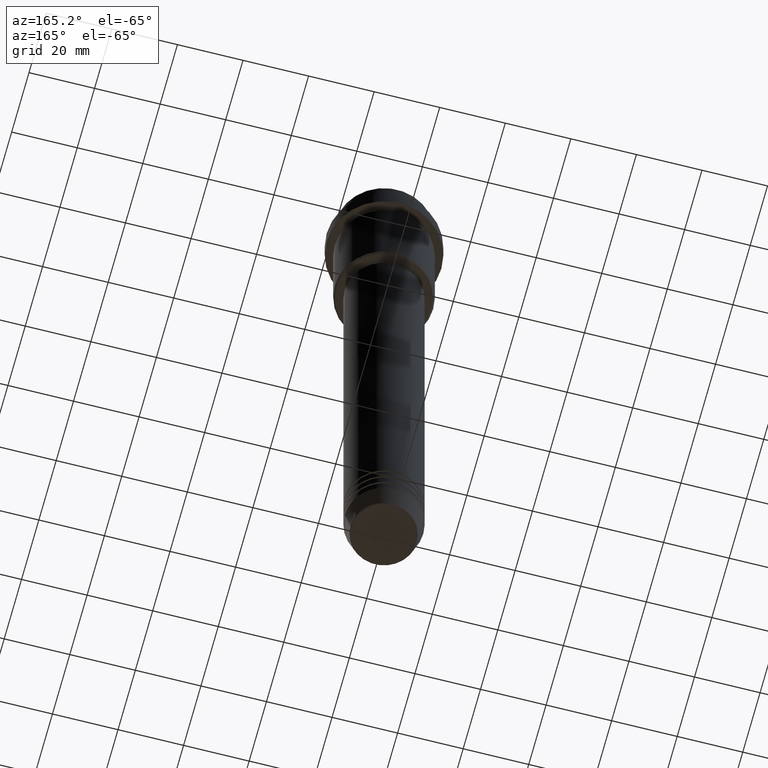
[diagram: clean part render]
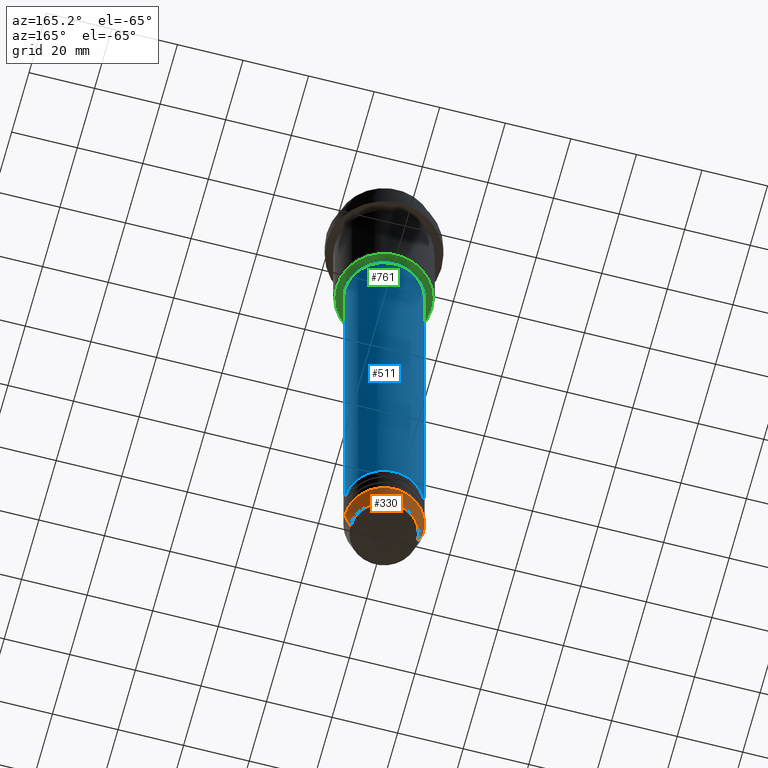
[diagram: same view with three faces highlighted in distinct colors, each labeled with its STEP entity id]
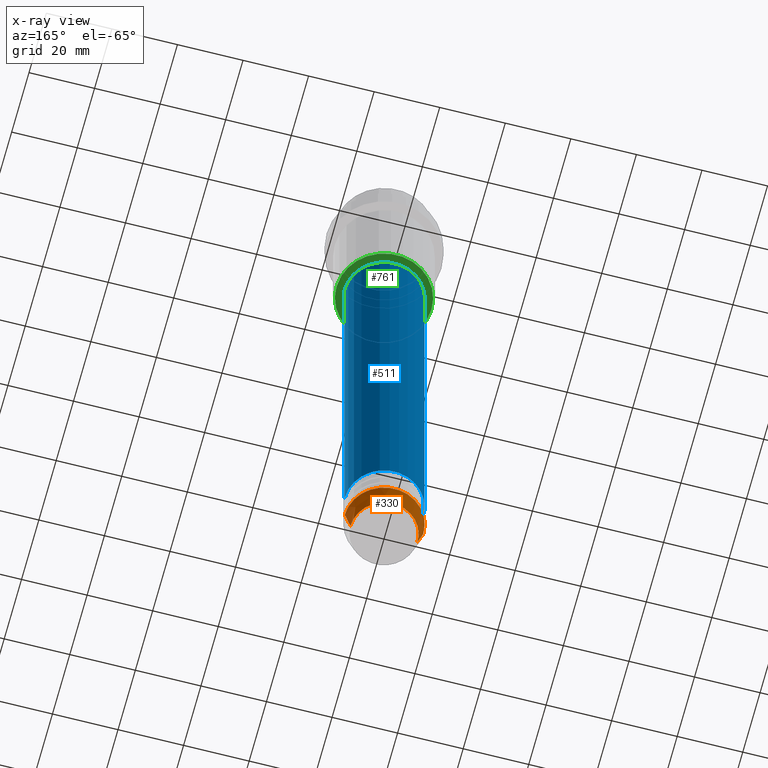
[diagram: x-ray of the same camera — body ghosted, the three highlighted faces saturated]
A machine part, auxiliary view with three faces highlighted in distinct colors.
The next image is the same camera in x-ray (body ghosted, the three faces saturated) — at least one of them is partly hidden behind the body in this view.
Their STEP definitions:

[orange] entity #330 — the highlighted conical surface has half-angle 15 deg.
#31 = EDGE_LOOP ( 'NONE', ( #1275, #1343, #374, #898 ) ) ;
#100 = CONICAL_SURFACE ( 'NONE', #954, 12.00000000000000000, 0.2617993877991500740 ) ;
#107 = CARTESIAN_POINT ( 'NONE',  ( 12.00000000000000000, 0.000000000000000000, -203.0000000000000000 ) ) ;
#207 = EDGE_CURVE ( 'NONE', #807, #1209, #461, .T. ) ;
#292 = CARTESIAN_POINT ( 'NONE',  ( 0.000000000000000000, 0.000000000000000000, -209.6294095225512706 ) ) ;
#330 = ADVANCED_FACE ( 'NONE', ( #1237 ), #100, .T. ) ;
#374 = ORIENTED_EDGE ( 'NONE', *, *, #207, .F. ) ;
#383 = CARTESIAN_POINT ( 'NONE',  ( -12.00000000000000000, 1.469576158976823947E-15, -203.0000000000000000 ) ) ;
#389 = CARTESIAN_POINT ( 'NONE',  ( 0.000000000000000000, 0.000000000000000000, -203.0000000000000000 ) ) ;
#461 = CIRCLE ( 'NONE', #1124, 12.00000000000000000 ) ;
#543 = DIRECTION ( 'NONE',  ( 0.2588190451025213501, 0.000000000000000000, 0.9659258262890680902 ) ) ;
#548 = DIRECTION ( 'NONE',  ( -0.000000000000000000, -0.000000000000000000, 1.000000000000000000 ) ) ;
#562 = EDGE_CURVE ( 'NONE', #1393, #1209, #1391, .T. ) ;
#581 = EDGE_CURVE ( 'NONE', #659, #807, #1327, .T. ) ;
#587 = DIRECTION ( 'NONE',  ( -0.2588190451025213501, 3.169619151431772337E-17, 0.9659258262890680902 ) ) ;
#659 = VERTEX_POINT ( 'NONE', #684 ) ;
#684 = CARTESIAN_POINT ( 'NONE',  ( 10.22365507213719127, 0.000000000000000000, -209.6294095225512706 ) ) ;
#734 = DIRECTION ( 'NONE',  ( 1.000000000000000000, 0.000000000000000000, 0.000000000000000000 ) ) ;
#807 = VERTEX_POINT ( 'NONE', #1232 ) ;
#816 = CIRCLE ( 'NONE', #1362, 10.22365507213719127 ) ;
#898 = ORIENTED_EDGE ( 'NONE', *, *, #581, .F. ) ;
#906 = VECTOR ( 'NONE', #587, 1000.000000000000000 ) ;
#930 = VECTOR ( 'NONE', #543, 1000.000000000000000 ) ;
#953 = CARTESIAN_POINT ( 'NONE',  ( -10.22365507213719127, 1.360806402472382744E-15, -209.6294095225512706 ) ) ;
#954 = AXIS2_PLACEMENT_3D ( 'NONE', #389, #1262, #1024 ) ;
#1024 = DIRECTION ( 'NONE',  ( 1.000000000000000000, 0.000000000000000000, 0.000000000000000000 ) ) ;
#1124 = AXIS2_PLACEMENT_3D ( 'NONE', #1413, #548, #1290 ) ;
#1209 = VERTEX_POINT ( 'NONE', #383 ) ;
#1232 = CARTESIAN_POINT ( 'NONE',  ( 12.00000000000000000, 0.000000000000000000, -203.0000000000000000 ) ) ;
#1237 = FACE_OUTER_BOUND ( 'NONE', #31, .T. ) ;
#1262 = DIRECTION ( 'NONE',  ( -0.000000000000000000, -0.000000000000000000, 1.000000000000000000 ) ) ;
#1273 = CARTESIAN_POINT ( 'NONE',  ( -12.00000000000000000, 1.469576158976823947E-15, -203.0000000000000000 ) ) ;
#1275 = ORIENTED_EDGE ( 'NONE', *, *, #1398, .T. ) ;
#1290 = DIRECTION ( 'NONE',  ( 1.000000000000000000, 0.000000000000000000, 0.000000000000000000 ) ) ;
#1327 = LINE ( 'NONE', #107, #930 ) ;
#1343 = ORIENTED_EDGE ( 'NONE', *, *, #562, .T. ) ;
#1362 = AXIS2_PLACEMENT_3D ( 'NONE', #292, #1386, #734 ) ;
#1386 = DIRECTION ( 'NONE',  ( -0.000000000000000000, -0.000000000000000000, 1.000000000000000000 ) ) ;
#1391 = LINE ( 'NONE', #1273, #906 ) ;
#1393 = VERTEX_POINT ( 'NONE', #953 ) ;
#1398 = EDGE_CURVE ( 'NONE', #659, #1393, #816, .T. ) ;
#1413 = CARTESIAN_POINT ( 'NONE',  ( 0.000000000000000000, 0.000000000000000000, -203.0000000000000000 ) ) ;

[blue] entity #511 — the highlighted cylindrical surface (partial cylindrical patch) has radius 12 mm, axis along (-0, -0, 1).
#2 = VERTEX_POINT ( 'NONE', #824 ) ;
#30 = VECTOR ( 'NONE', #204, 1000.000000000000000 ) ;
#32 = CIRCLE ( 'NONE', #1067, 12.00000000000000000 ) ;
#119 = AXIS2_PLACEMENT_3D ( 'NONE', #917, #1157, #683 ) ;
#183 = ORIENTED_EDGE ( 'NONE', *, *, #730, .F. ) ;
#204 = DIRECTION ( 'NONE',  ( -0.000000000000000000, -0.000000000000000000, 1.000000000000000000 ) ) ;
#338 = CARTESIAN_POINT ( 'NONE',  ( 12.00000000000000000, 0.000000000000000000, 0.000000000000000000 ) ) ;
#511 = ADVANCED_FACE ( 'NONE', ( #1375 ), #1234, .T. ) ;
#525 = VERTEX_POINT ( 'NONE', #584 ) ;
#584 = CARTESIAN_POINT ( 'NONE',  ( -11.99999999999999822, 1.469576158976823750E-15, -46.00000000000001421 ) ) ;
#588 = CARTESIAN_POINT ( 'NONE',  ( 0.000000000000000000, 0.000000000000000000, -190.9999999999998863 ) ) ;
#616 = CARTESIAN_POINT ( 'NONE',  ( -12.00000000000000000, 1.469576158976823947E-15, 0.000000000000000000 ) ) ;
#620 = LINE ( 'NONE', #616, #695 ) ;
#635 = CARTESIAN_POINT ( 'NONE',  ( 12.00000000000000000, 0.000000000000000000, -190.9999999999998863 ) ) ;
#683 = DIRECTION ( 'NONE',  ( 1.000000000000000000, 0.000000000000000000, 0.000000000000000000 ) ) ;
#695 = VECTOR ( 'NONE', #1165, 1000.000000000000000 ) ;
#729 = CARTESIAN_POINT ( 'NONE',  ( 0.000000000000000000, 0.000000000000000000, -46.00000000000001421 ) ) ;
#730 = EDGE_CURVE ( 'NONE', #731, #801, #1368, .T. ) ;
#731 = VERTEX_POINT ( 'NONE', #635 ) ;
#757 = ORIENTED_EDGE ( 'NONE', *, *, #1201, .T. ) ;
#801 = VERTEX_POINT ( 'NONE', #1155 ) ;
#824 = CARTESIAN_POINT ( 'NONE',  ( -12.00000000000000000, 1.469576158976823947E-15, -190.9999999999998863 ) ) ;
#917 = CARTESIAN_POINT ( 'NONE',  ( 0.000000000000000000, 0.000000000000000000, 0.000000000000000000 ) ) ;
#952 = EDGE_LOOP ( 'NONE', ( #757, #1283, #1061, #183 ) ) ;
#990 = EDGE_CURVE ( 'NONE', #801, #525, #1339, .T. ) ;
#1058 = DIRECTION ( 'NONE',  ( 1.000000000000000000, 0.000000000000000000, 0.000000000000000000 ) ) ;
#1061 = ORIENTED_EDGE ( 'NONE', *, *, #990, .F. ) ;
#1067 = AXIS2_PLACEMENT_3D ( 'NONE', #588, #1370, #1120 ) ;
#1120 = DIRECTION ( 'NONE',  ( 1.000000000000000000, 0.000000000000000000, 0.000000000000000000 ) ) ;
#1155 = CARTESIAN_POINT ( 'NONE',  ( 11.99999999999999822, 0.000000000000000000, -46.00000000000001421 ) ) ;
#1157 = DIRECTION ( 'NONE',  ( -0.000000000000000000, -0.000000000000000000, 1.000000000000000000 ) ) ;
#1165 = DIRECTION ( 'NONE',  ( -0.000000000000000000, -0.000000000000000000, 1.000000000000000000 ) ) ;
#1201 = EDGE_CURVE ( 'NONE', #731, #2, #32, .T. ) ;
#1234 = CYLINDRICAL_SURFACE ( 'NONE', #119, 12.00000000000000000 ) ;
#1240 = AXIS2_PLACEMENT_3D ( 'NONE', #729, #1279, #1058 ) ;
#1279 = DIRECTION ( 'NONE',  ( -0.000000000000000000, -0.000000000000000000, 1.000000000000000000 ) ) ;
#1283 = ORIENTED_EDGE ( 'NONE', *, *, #1414, .T. ) ;
#1339 = CIRCLE ( 'NONE', #1240, 11.99999999999999822 ) ;
#1368 = LINE ( 'NONE', #338, #30 ) ;
#1370 = DIRECTION ( 'NONE',  ( -0.000000000000000000, -0.000000000000000000, 1.000000000000000000 ) ) ;
#1375 = FACE_OUTER_BOUND ( 'NONE', #952, .T. ) ;
#1414 = EDGE_CURVE ( 'NONE', #2, #525, #620, .T. ) ;

[green] entity #761 — the highlighted planar face has unit normal (0, 0, -1).
#36 = CARTESIAN_POINT ( 'NONE',  ( 0.000000000000000000, 15.00000000000000000, -45.00000000000001421 ) ) ;
#50 = FACE_OUTER_BOUND ( 'NONE', #238, .T. ) ;
#72 = VERTEX_POINT ( 'NONE', #1233 ) ;
#128 = DIRECTION ( 'NONE',  ( 0.000000000000000000, 0.000000000000000000, -1.000000000000000000 ) ) ;
#133 = DIRECTION ( 'NONE',  ( -1.000000000000000000, 0.000000000000000000, 0.000000000000000000 ) ) ;
#150 = AXIS2_PLACEMENT_3D ( 'NONE', #793, #503, #313 ) ;
#166 = FACE_BOUND ( 'NONE', #291, .T. ) ;
#174 = AXIS2_PLACEMENT_3D ( 'NONE', #36, #681, #1179 ) ;
#193 = CARTESIAN_POINT ( 'NONE',  ( 0.000000000000000000, 0.000000000000000000, -45.00000000000001421 ) ) ;
#238 = EDGE_LOOP ( 'NONE', ( #1134, #327 ) ) ;
#277 = DIRECTION ( 'NONE',  ( 1.000000000000000000, 0.000000000000000000, 0.000000000000000000 ) ) ;
#291 = EDGE_LOOP ( 'NONE', ( #1184, #1320 ) ) ;
#313 = DIRECTION ( 'NONE',  ( -1.000000000000000000, 0.000000000000000000, 0.000000000000000000 ) ) ;
#327 = ORIENTED_EDGE ( 'NONE', *, *, #1166, .T. ) ;
#333 = CIRCLE ( 'NONE', #376, 11.49999999999999467 ) ;
#373 = CIRCLE ( 'NONE', #743, 11.49999999999999467 ) ;
#376 = AXIS2_PLACEMENT_3D ( 'NONE', #193, #1057, #508 ) ;
#401 = CIRCLE ( 'NONE', #150, 14.49999999999998401 ) ;
#503 = DIRECTION ( 'NONE',  ( 0.000000000000000000, 0.000000000000000000, -1.000000000000000000 ) ) ;
#508 = DIRECTION ( 'NONE',  ( 1.000000000000000000, 0.000000000000000000, 0.000000000000000000 ) ) ;
#676 = PLANE ( 'NONE',  #174 ) ;
#681 = DIRECTION ( 'NONE',  ( 0.000000000000000000, 0.000000000000000000, -1.000000000000000000 ) ) ;
#699 = VERTEX_POINT ( 'NONE', #827 ) ;
#743 = AXIS2_PLACEMENT_3D ( 'NONE', #1143, #1352, #277 ) ;
#761 = ADVANCED_FACE ( 'NONE', ( #50, #166 ), #676, .T. ) ;
#793 = CARTESIAN_POINT ( 'NONE',  ( 0.000000000000000000, 0.000000000000000000, -45.00000000000001421 ) ) ;
#827 = CARTESIAN_POINT ( 'NONE',  ( -14.49999999999998401, 1.806354028742345013E-15, -45.00000000000001421 ) ) ;
#870 = CARTESIAN_POINT ( 'NONE',  ( 14.49999999999998401, 0.000000000000000000, -45.00000000000001421 ) ) ;
#886 = CIRCLE ( 'NONE', #1087, 14.49999999999998401 ) ;
#932 = VERTEX_POINT ( 'NONE', #870 ) ;
#1057 = DIRECTION ( 'NONE',  ( -0.000000000000000000, -0.000000000000000000, 1.000000000000000000 ) ) ;
#1087 = AXIS2_PLACEMENT_3D ( 'NONE', #1331, #128, #133 ) ;
#1134 = ORIENTED_EDGE ( 'NONE', *, *, #1350, .T. ) ;
#1143 = CARTESIAN_POINT ( 'NONE',  ( 0.000000000000000000, 0.000000000000000000, -45.00000000000001421 ) ) ;
#1166 = EDGE_CURVE ( 'NONE', #699, #932, #886, .T. ) ;
#1179 = DIRECTION ( 'NONE',  ( -1.000000000000000000, 0.000000000000000000, -0.000000000000000000 ) ) ;
#1184 = ORIENTED_EDGE ( 'NONE', *, *, #1231, .T. ) ;
#1231 = EDGE_CURVE ( 'NONE', #72, #1372, #373, .T. ) ;
#1233 = CARTESIAN_POINT ( 'NONE',  ( 11.49999999999999467, 0.000000000000000000, -45.00000000000001421 ) ) ;
#1284 = CARTESIAN_POINT ( 'NONE',  ( -11.49999999999999467, 1.408343819019455781E-15, -45.00000000000001421 ) ) ;
#1320 = ORIENTED_EDGE ( 'NONE', *, *, #1381, .T. ) ;
#1331 = CARTESIAN_POINT ( 'NONE',  ( 0.000000000000000000, 0.000000000000000000, -45.00000000000001421 ) ) ;
#1350 = EDGE_CURVE ( 'NONE', #932, #699, #401, .T. ) ;
#1352 = DIRECTION ( 'NONE',  ( -0.000000000000000000, -0.000000000000000000, 1.000000000000000000 ) ) ;
#1372 = VERTEX_POINT ( 'NONE', #1284 ) ;
#1381 = EDGE_CURVE ( 'NONE', #1372, #72, #333, .T. ) ;